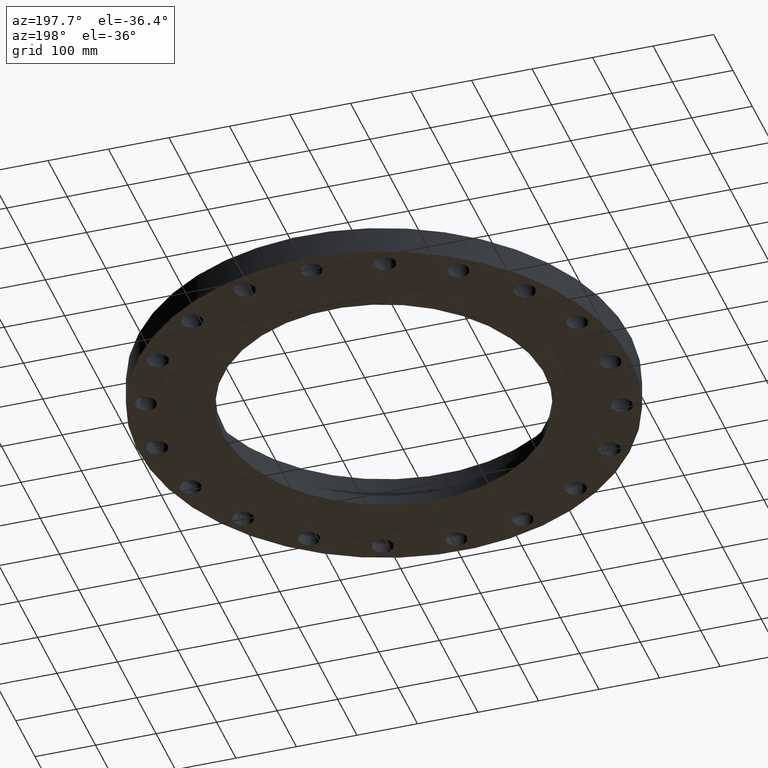
[diagram: clean part render]
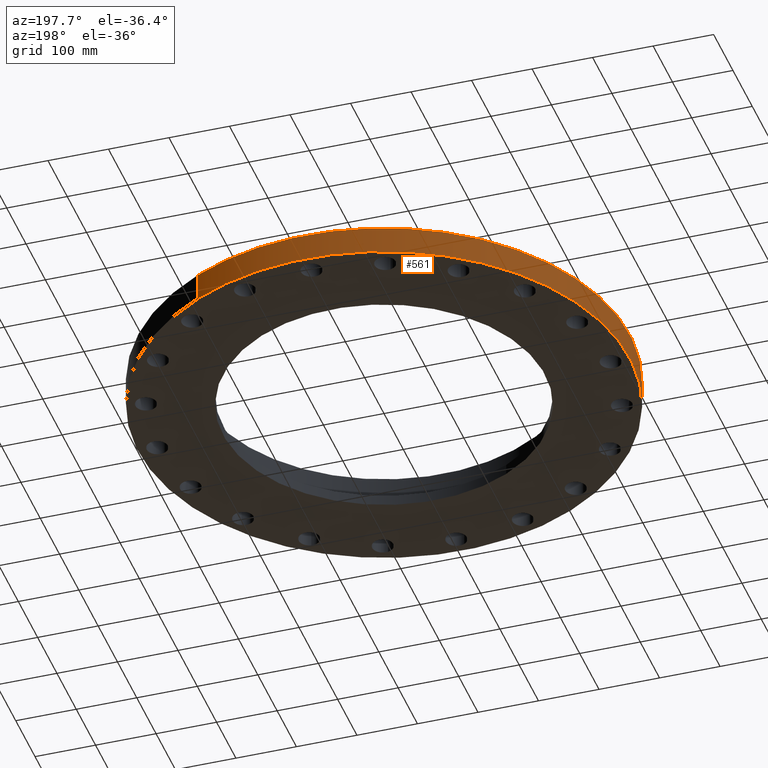
[diagram: same view with one face highlighted and labeled with its STEP entity id]
A machine part, auxiliary view. The second image highlights one B-rep face of the part: STEP entity #561.
In plain terms, the highlighted cylindrical surface (partial cylindrical patch) has radius 406.4 mm, axis along (0, 0, -1).
Its self-contained STEP definition (entity closure, byte-faithful):
#150=AXIS2_PLACEMENT_3D('Circle Axis2P3D',#148,#149,$) ;
#534=AXIS2_PLACEMENT_3D('Cylinder Axis2P3D',#531,#532,#533) ;
#545=AXIS2_PLACEMENT_3D('Circle Axis2P3D',#543,#544,$) ;
#148=CARTESIAN_POINT('Axis2P3D Location',(0.,0.,0.)) ;
#152=CARTESIAN_POINT('Vertex',(-7.6708086177,-14.0413209903,1.95818864186E-015)) ;
#154=CARTESIAN_POINT('Vertex',(7.6708086177,14.0413209903,1.95818864186E-015)) ;
#531=CARTESIAN_POINT('Axis2P3D Location',(0.,0.,1.59500000001)) ;
#536=CARTESIAN_POINT('Line Origine',(-7.6708086177,-14.0413209903,0.905000000004)) ;
#540=CARTESIAN_POINT('Vertex',(-7.6708086177,-14.0413209903,1.81000000001)) ;
#543=CARTESIAN_POINT('Axis2P3D Location',(0.,0.,1.81000000001)) ;
#547=CARTESIAN_POINT('Vertex',(7.6708086177,14.0413209903,1.81000000001)) ;
#550=CARTESIAN_POINT('Line Origine',(7.6708086177,14.0413209903,0.905000000004)) ;
#149=DIRECTION('Axis2P3D Direction',(0.,0.,-0.0393700787402)) ;
#532=DIRECTION('Axis2P3D Direction',(0.,0.,-0.0393700787402)) ;
#533=DIRECTION('Axis2P3D XDirection',(0.0188750212049,0.0345504945626,0.)) ;
#537=DIRECTION('Vector Direction',(0.,0.,-0.0393700787402)) ;
#544=DIRECTION('Axis2P3D Direction',(0.,0.,-0.0393700787402)) ;
#551=DIRECTION('Vector Direction',(0.,0.,-0.0393700787402)) ;
#538=VECTOR('Line Direction',#537,0.0393700787402) ;
#552=VECTOR('Line Direction',#551,0.0393700787402) ;
#556=ORIENTED_EDGE('',*,*,#156,.F.) ;
#557=ORIENTED_EDGE('',*,*,#542,.T.) ;
#558=ORIENTED_EDGE('',*,*,#549,.T.) ;
#559=ORIENTED_EDGE('',*,*,#554,.F.) ;
#561=ADVANCED_FACE('PartBody',(#560),#535,.T.) ;
#151=CIRCLE('generated circle',#150,16.0000000001) ;
#546=CIRCLE('generated circle',#545,16.0000000001) ;
#535=CYLINDRICAL_SURFACE('generated cylinder',#534,16.0000000001) ;
#156=EDGE_CURVE('',#153,#155,#151,.T.) ;
#542=EDGE_CURVE('',#153,#541,#539,.F.) ;
#549=EDGE_CURVE('',#541,#548,#546,.T.) ;
#554=EDGE_CURVE('',#155,#548,#553,.F.) ;
#555=EDGE_LOOP('',(#556,#557,#558,#559)) ;
#560=FACE_OUTER_BOUND('',#555,.T.) ;
#539=LINE('Line',#536,#538) ;
#553=LINE('Line',#550,#552) ;
#153=VERTEX_POINT('',#152) ;
#155=VERTEX_POINT('',#154) ;
#541=VERTEX_POINT('',#540) ;
#548=VERTEX_POINT('',#547) ;